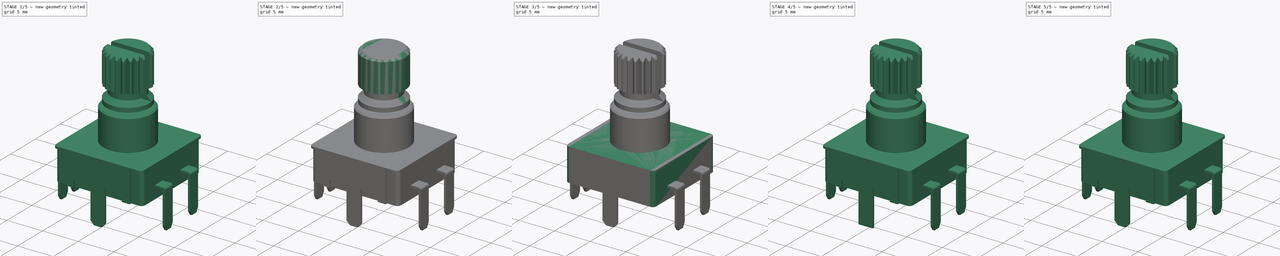
[diagram: build sequence overview — one tinted view per stage of 5, left to right]
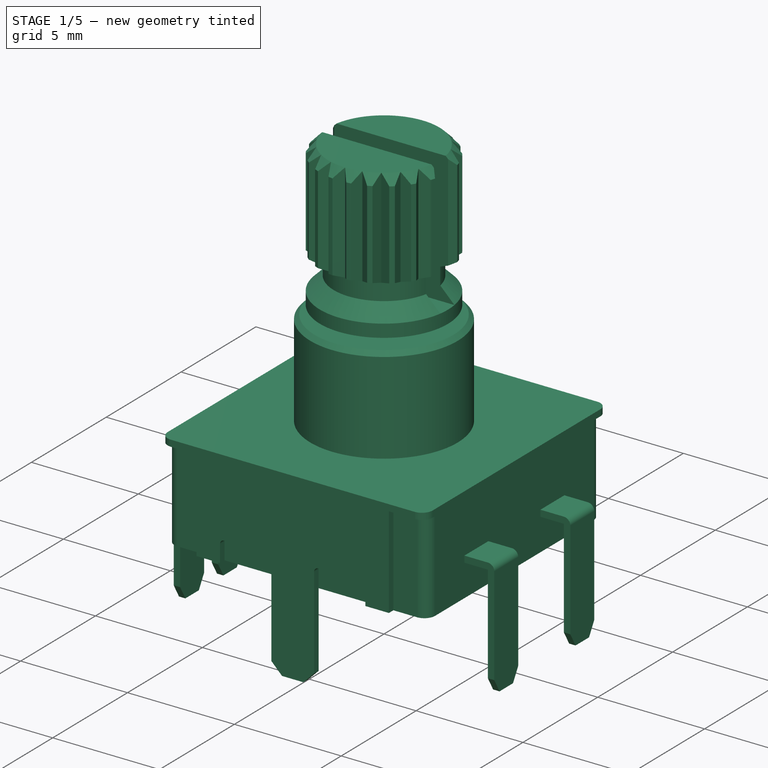
[diagram: stage 1 of 5 — iso view after this stage's code; geometry added in this stage tinted green]
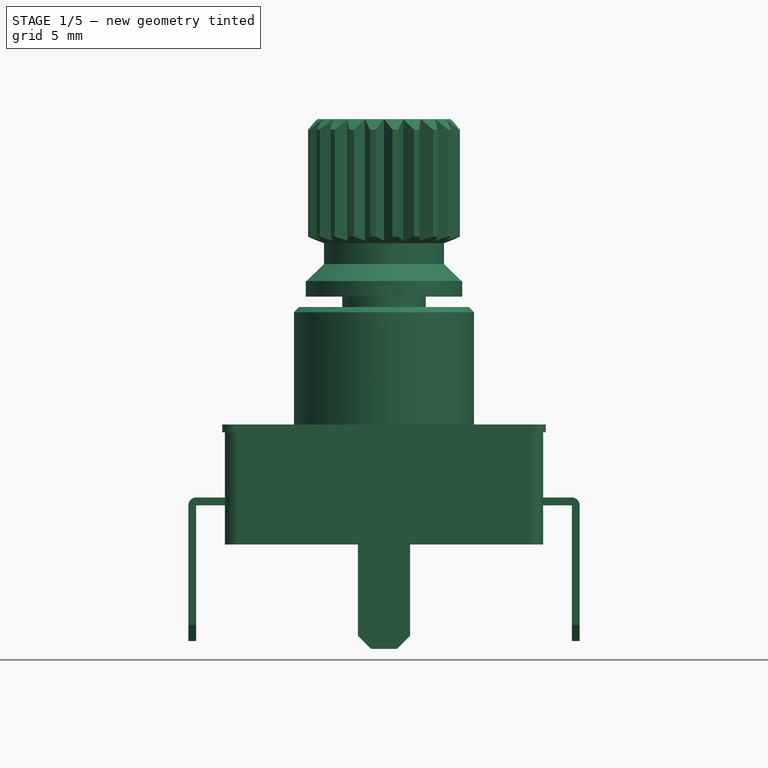
[diagram: stage 1 of 5 — front view after this stage's code; geometry added in this stage tinted green]
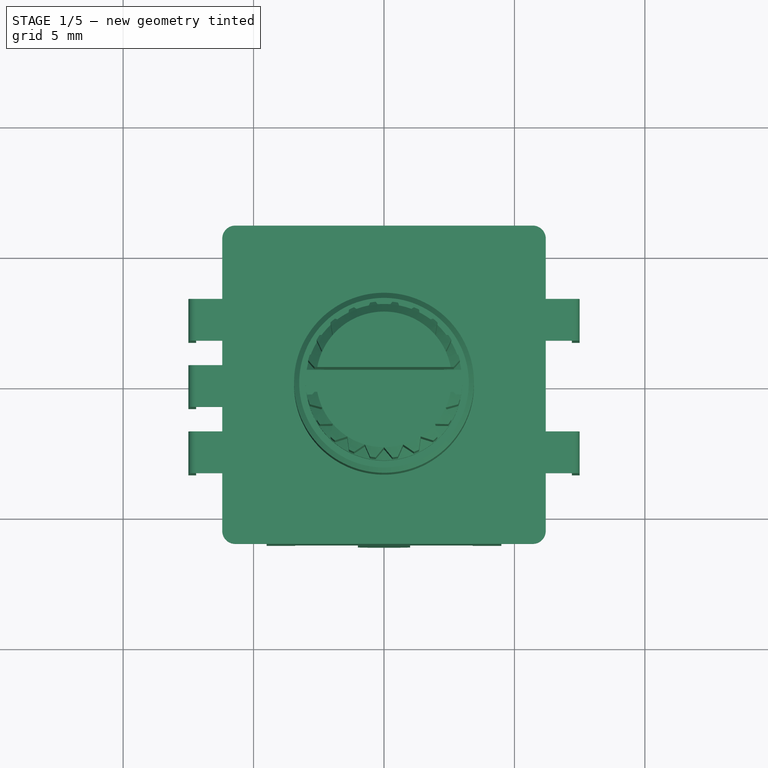
[diagram: stage 1 of 5 — top view after this stage's code; geometry added in this stage tinted green]
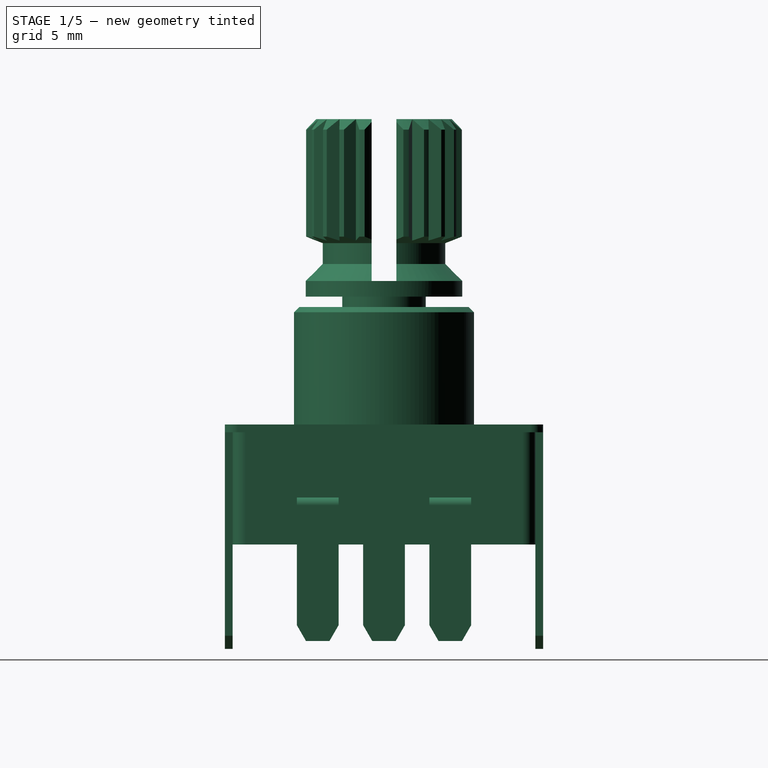
[diagram: stage 1 of 5 — right view after this stage's code; geometry added in this stage tinted green]
FCSTD DOCUMENT  (FreeCAD 0.14R3702 (Git))
Label: rotatory-enconder
License: CC-BY 3.0
LicenseURL: http://creativecommons.org/licenses/by/3.0/
objects: Sketcher::SketchObject×10, Part::Feature×6, PartDesign::Pocket×5, PartDesign::Pad×4, App::DocumentObjectGroup×3, Part::MultiFuse×2, Part::Mirroring×2, Part::Chamfer×1, Part::Fillet×1, PartDesign::Revolution×1, PartDesign::PolarPattern×1, Part::Compound×1
note: 44 computed .brp shape members not serialized (recipe doc carries the construction recipe); baked Part::Feature solids carry a one-line shape summary decoded from their .brp

FEATURE [Part::Feature] Pocket004001  label="pin-1"
  Placement = pos=(0,0,0) rot=(1,0,0;1.5708rad)
  shape: bbox 1.4 x 1.6 x 5.5 mm, 11 faces (baked)
FEATURE [Part::Feature] Pocket004002  label="pin-002"
  Placement = pos=(0,2.54,0) rot=(1,0,0;1.5708rad)
  shape: bbox 1.4 x 1.6 x 5.5 mm, 11 faces (baked)
FEATURE [Part::Feature] Pocket004003  label="pin-003"
  Placement = pos=(0,-2.54,0) rot=(1,0,0;1.5708rad)
  shape: bbox 1.4 x 1.6 x 5.5 mm, 11 faces (baked)
FEATURE [Part::Mirroring] Part__Mirroring  label="pin-003 (Mirror #1)"
  Base = (0,0,0)
  Normal = (1,0,0)
  Source = -> Pocket004003
FEATURE [Part::Mirroring] Part__Mirroring001  label="pin-002 (Mirror #2)"
  Base = (0,0,0)
  Normal = (1,0,0)
  Source = -> Pocket004002
FEATURE [Part::MultiFuse] Fusion002  label="pins-union"
  Shapes = -> [Pocket004001,Part__Mirroring001,Pocket004003,Pocket004002,Part__Mirroring]
FEATURE [App::DocumentObjectGroup] Group002  label="pin-src"
  Group = -> [Pad004,Pocket004,Fusion002]
FEATURE [Part::Feature] Fusion003  label="pins"
  shape: bbox 15 x 6.68 x 5.5 mm, 55 faces, 5 solids (baked)
FEATURE [Part::Compound] Compound  label="rotatory-encoder"
  Links = -> [Pad003,Fusion001,Fusion003]
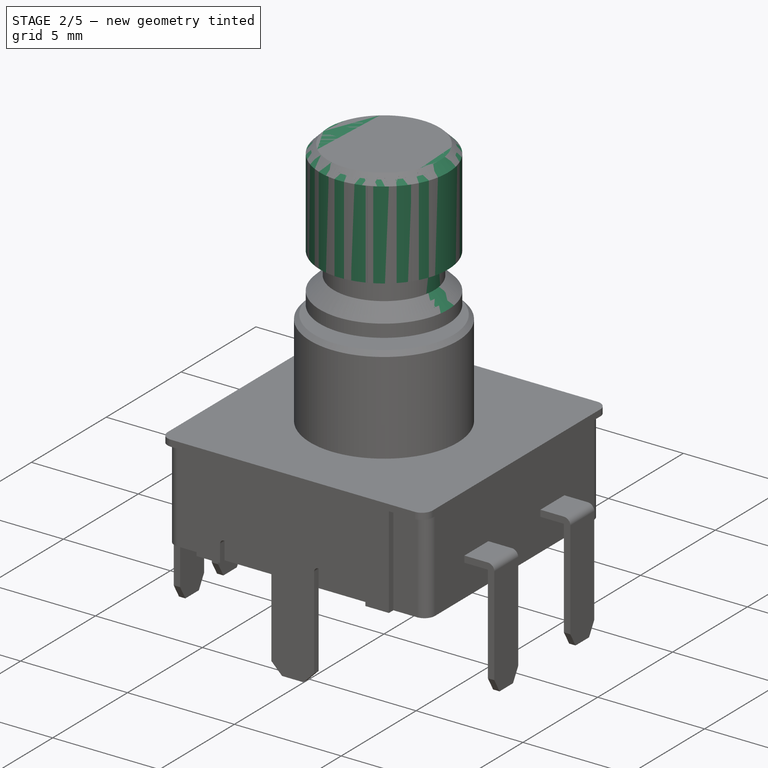
[diagram: stage 2 of 5 — iso view after this stage's code; geometry added in this stage tinted green]
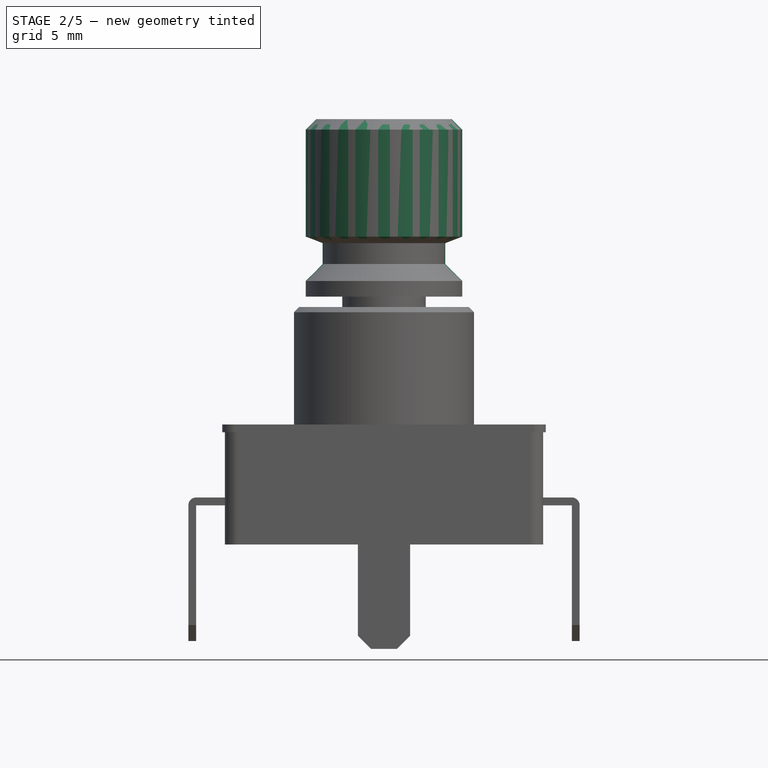
[diagram: stage 2 of 5 — front view after this stage's code; geometry added in this stage tinted green]
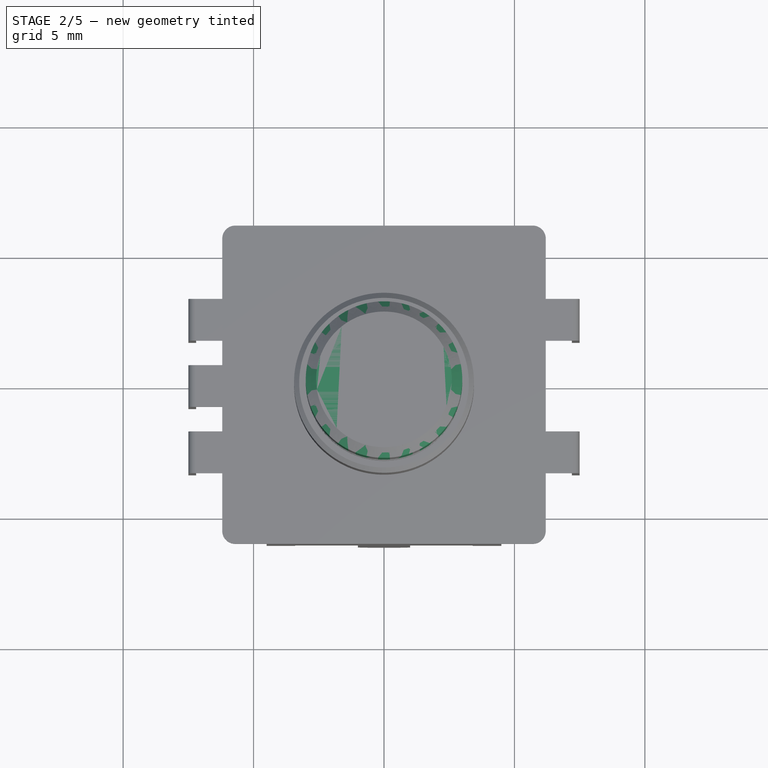
[diagram: stage 2 of 5 — top view after this stage's code; geometry added in this stage tinted green]
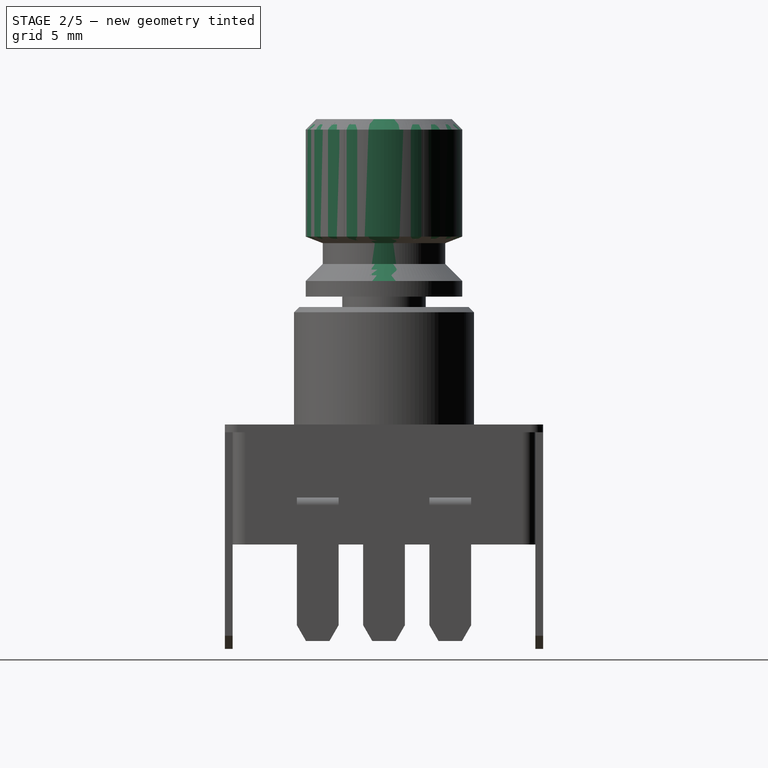
[diagram: stage 2 of 5 — right view after this stage's code; geometry added in this stage tinted green]
FEATURE [Sketcher::SketchObject] Sketch005  label="rotatory-button-sketch"
  Placement = pos=(0,0,0) rot=(1,0,0;1.5708rad)
  sketch-geometry (14):
    g0: LineSegment StartX=0 StartY=4.3 StartZ=0 EndX=3.45 EndY=4.3 EndZ=0
    g1: LineSegment StartX=3.45 StartY=4.3 StartZ=0 EndX=3.45 EndY=8.9 EndZ=0
    g2: LineSegment StartX=0 StartY=16.3 StartZ=0 EndX=0 EndY=4.3 EndZ=0
    g3: LineSegment StartX=3.25 StartY=9.1 StartZ=0 EndX=1.6 EndY=9.1 EndZ=0
    g4: LineSegment StartX=3.25 StartY=9.1 StartZ=0 EndX=3.45 EndY=8.9 EndZ=0
    g5: LineSegment StartX=1.6 StartY=9.1 StartZ=0 EndX=1.6 EndY=9.5 EndZ=0
    g6: LineSegment StartX=1.6 StartY=9.5 StartZ=0 EndX=3 EndY=9.5 EndZ=0
    g7: LineSegment StartX=3 StartY=9.5 StartZ=0 EndX=3 EndY=10.1 EndZ=0
    g8: LineSegment StartX=2.35 StartY=11.55 StartZ=0 EndX=2.35 EndY=10.75 EndZ=0
    g9: LineSegment StartX=2.35 StartY=10.75 StartZ=0 EndX=3 EndY=10.1 EndZ=0
    g10: LineSegment StartX=0 StartY=16.3 StartZ=0 EndX=2.6 EndY=16.3 EndZ=0
    g11: LineSegment StartX=2.6 StartY=16.3 StartZ=0 EndX=3 EndY=15.9 EndZ=0
    g12: LineSegment StartX=3 StartY=15.9 StartZ=0 EndX=3 EndY=11.8 EndZ=0
    g13: LineSegment StartX=2.35 StartY=11.55 StartZ=0 EndX=3 EndY=11.8 EndZ=0
  constraints (42):
    c: Coincident(g0,g1)
    c: Coincident(g2,g0)
    c: Horizontal(g0)
    c: Vertical(g1)
    c: Vertical(g2)
    c: PointOnObject(g0,g-2)
    c: DistanceY(g-1,g0) = 4.3
    c: DistanceX(g0) = 3.45
    c: DistanceY(g3,g0) = -4.8
    c: Horizontal(g3)
    c: DistanceX(g0,g3) = 1.6
    c: Coincident(g4,g3)
    c: Coincident(g4,g1)
    c: Angle(g3,g4) = 2.35619
    c: DistanceX(g1,g3) = -0.2
    c: Vertical(g5)
    c: Coincident(g5,g3)
    c: DistanceY(g5) = 0.4
    c: DistanceY(g2) = -12
    c: Coincident(g6,g7)
    c: Horizontal(g6)
    c: Vertical(g7)
    c: Coincident(g6,g5)
    c: DistanceY(g7) = 0.6
    c: Vertical(g8)
    c: DistanceX(g8,g0) = -2.35
    c: DistanceX(g6,g0) = -3
    c: Coincident(g9,g7)
    c: Coincident(g9,g8)
    c: Angle(g9,g8) = 2.35619
    c: DistanceY(g8) = -0.8
    c: Coincident(g10,g11)
    c: Coincident(g11,g12)
    c: Horizontal(g10)
    c: Vertical(g12)
    c: Angle(g10,g11) = 2.35619
    c: Coincident(g10,g2)
    c: DistanceX(g11,g2) = -3
    c: DistanceX(g11,g10) = -0.4
    c: DistanceY(g12) = -4.1
    c: Coincident(g13,g8)
    c: Coincident(g13,g12)
FEATURE [PartDesign::Revolution] Revolution  label="rotatory-button"
  Angle = 360
  Axis = (0,0,1)
  Base = (0,0,0)
  Placement = pos=(0,0,0) rot=(1,0,0;1.5708rad)
  ReferenceAxis = -> Sketch005 [V_Axis]
  Reversed = true
  Sketch = -> Sketch005
FEATURE [App::DocumentObjectGroup] Group001  label="metal-cover-button"
  Group = -> [Pad001,Pocket,Pocket001,Fillet,Revolution,Pocket002,PolarPattern,Pocket003,Fusion]
FEATURE [Part::Feature] Pad003  label="main-body-final"
  shape: bbox 12.2 x 11.6 x 4.3 mm, 10 faces (baked)
FEATURE [Part::Feature] Fusion001  label="metal-cover-button-final"
  shape: bbox 12.4 x 12.2 x 20.3 mm, 143 faces (baked)
FEATURE [Sketcher::SketchObject] Sketch008  label="pin-body-sketch"
  Placement = pos=(0,0,0) rot=(1,0,0;1.5708rad)
  sketch-geometry (8):
    g0: LineSegment StartX=-6.1 StartY=1.8 StartZ=0 EndX=-7.2 EndY=1.8 EndZ=0
    g1: LineSegment [constr] StartX=-7.2 StartY=1.8 StartZ=0 EndX=-7.2 EndY=1.5 EndZ=0
    g2: LineSegment StartX=-7.2 StartY=1.5 StartZ=0 EndX=-6.1 EndY=1.5 EndZ=0
    g3: LineSegment StartX=-6.1 StartY=1.5 StartZ=0 EndX=-6.1 EndY=1.8 EndZ=0
    g4: LineSegment StartX=-7.5 StartY=1.5 StartZ=0 EndX=-7.5 EndY=-3.7 EndZ=0
    g5: ArcOfCircle CenterX=-7.2 CenterY=1.5 CenterZ=0 NormalX=0 NormalY=0 NormalZ=1 Radius=0.3 StartAngle=1.5708 EndAngle=3.14159
    g6: LineSegment StartX=-7.2 StartY=1.5 StartZ=0 EndX=-7.2 EndY=-3.7 EndZ=0
    g7: LineSegment StartX=-7.2 StartY=-3.7 StartZ=0 EndX=-7.5 EndY=-3.7 EndZ=0
  constraints (23):
    c: Coincident(g0,g1)
    c: Coincident(g1,g2)
    c: Coincident(g2,g3)
    c: Coincident(g3,g0)
    c: Horizontal(g0)
    c: Horizontal(g2)
    c: Vertical(g1)
    c: Vertical(g3)
    c: DistanceY(g3) = 0.3
    c: DistanceX(g-1,g2) = -6.1
    c: DistanceY(g-1,g0) = 1.8
    c: Coincident(g5,g0)
    c: Coincident(g5,g1)
    c: Coincident(g4,g5)
    c: Vertical(g4)
    c: DistanceX(g-1,g4) = -7.5
    c: PointOnObject(g4,g2)
    c: DistanceY(g0,g4) = -5.5
    c: Coincident(g6,g7)
    c: Horizontal(g7)
    c: Vertical(g6)
    c: Coincident(g6,g1)
    c: Coincident(g7,g4)
FEATURE [PartDesign::Pad] Pad004  label="pin-body"
  Length = 1.6
  Length2 = 100
  Midplane = true
  Placement = pos=(0,0,0) rot=(1,0,0;1.5708rad)
  Sketch = -> Sketch008
  Type = 0
FEATURE [Sketcher::SketchObject] Sketch009  label="pin-cutout-1-sketch"
  ExternalGeometry = -> [Pad004]
  Placement = pos=(-7.5,0,0) rot=(0.707107,0,-0.707107;3.14159rad)
  Support = -> Pad004 [Face5]
  sketch-geometry (8):
    g0: LineSegment StartX=3.09378 StartY=0.8 StartZ=0 EndX=3.7 EndY=0.45 EndZ=0
    g1: LineSegment StartX=3.7 StartY=0.45 StartZ=0 EndX=3.7 EndY=-0.45 EndZ=0
    g2: LineSegment StartX=3.7 StartY=-0.45 StartZ=0 EndX=3.09378 EndY=-0.8 EndZ=0
    g3: LineSegment StartX=3.09378 StartY=1.3 StartZ=0 EndX=4.2 EndY=1.3 EndZ=0
    g4: LineSegment StartX=4.2 StartY=1.3 StartZ=0 EndX=4.2 EndY=-1.3 EndZ=0
    g5: LineSegment StartX=4.2 StartY=-1.3 StartZ=0 EndX=3.09378 EndY=-1.3 EndZ=0
    g6: LineSegment StartX=3.09378 StartY=1.3 StartZ=0 EndX=3.09378 EndY=0.8 EndZ=0
    g7: LineSegment StartX=3.09378 StartY=-0.8 StartZ=0 EndX=3.09378 EndY=-1.3 EndZ=0
  constraints (23):
    c: Coincident(g0,g1)
    c: Coincident(g1,g2)
    c: Vertical(g1)
    c: Symmetric(g0,g1,g-1)
    c: DistanceY(g1) = -0.9
    c: PointOnObject(g0,g-3)
    c: Angle(g0,g-3) = 2.0944
    c: PointOnObject(g0,g-4)
    c: Symmetric(g0,g2,g-1)
    c: Coincident(g3,g4)
    c: Coincident(g4,g5)
    c: Horizontal(g3)
    c: Horizontal(g5)
    c: Vertical(g4)
    c: Vertical(g6)
    c: Coincident(g6,g3)
    c: Vertical(g7)
    c: Coincident(g7,g5)
    c: Coincident(g7,g2)
    c: Coincident(g6,g0)
    c: Symmetric(g4,g3,g-1)
    c: DistanceX(g0,g3) = 0.5
    c: DistanceY(g3,g0) = -0.5
FEATURE [PartDesign::Pocket] Pocket004  label="pin-cutout-1"
  Length = 5
  Placement = pos=(0,0,0) rot=(1,0,0;1.5708rad)
  Sketch = -> Sketch009
  Type = 1
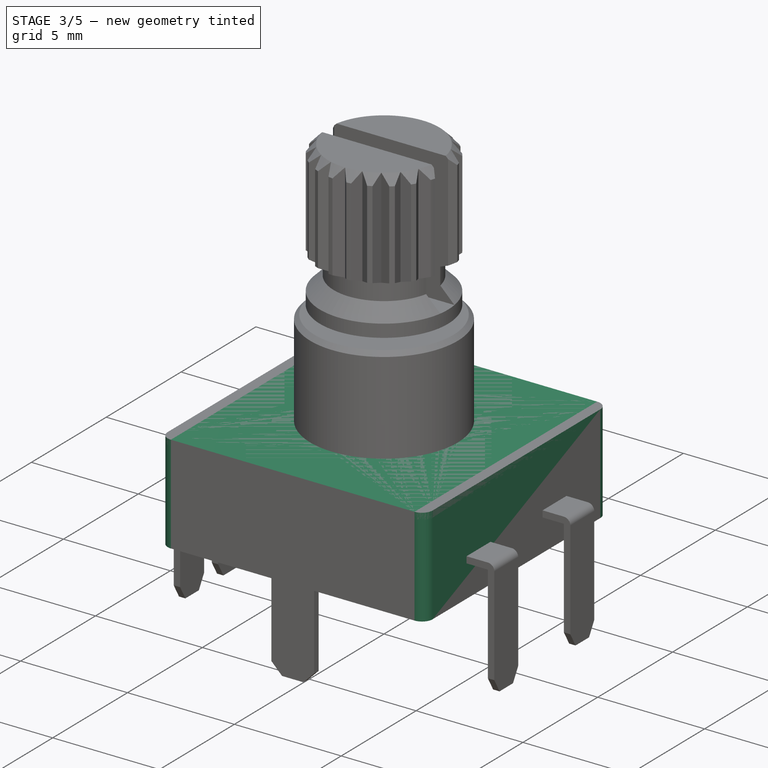
[diagram: stage 3 of 5 — iso view after this stage's code; geometry added in this stage tinted green]
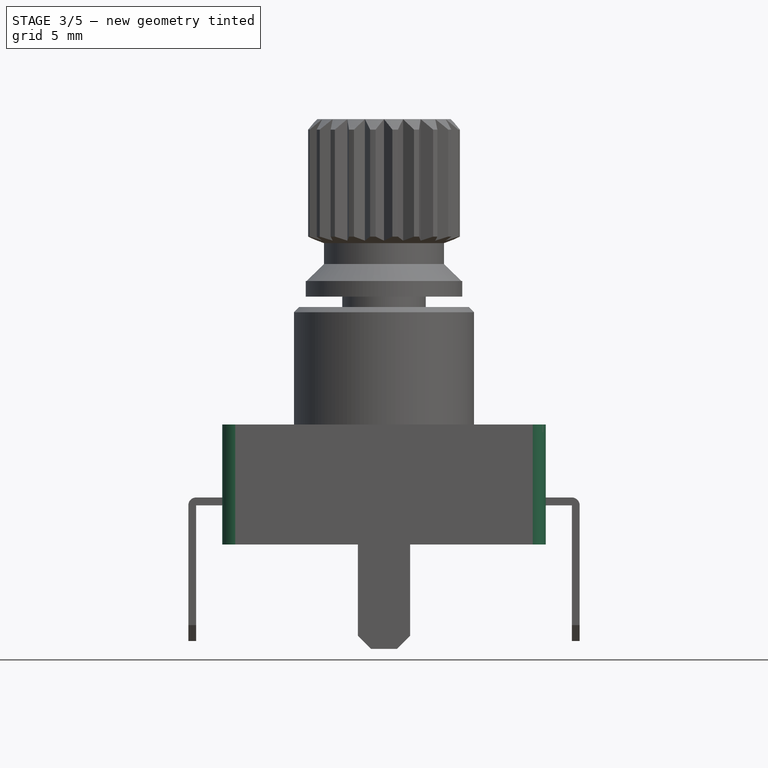
[diagram: stage 3 of 5 — front view after this stage's code; geometry added in this stage tinted green]
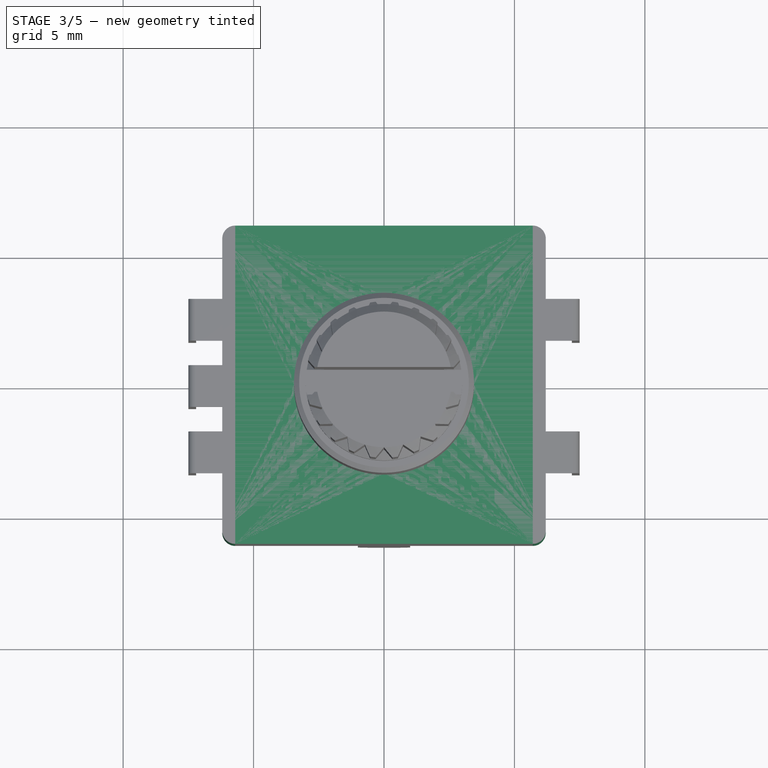
[diagram: stage 3 of 5 — top view after this stage's code; geometry added in this stage tinted green]
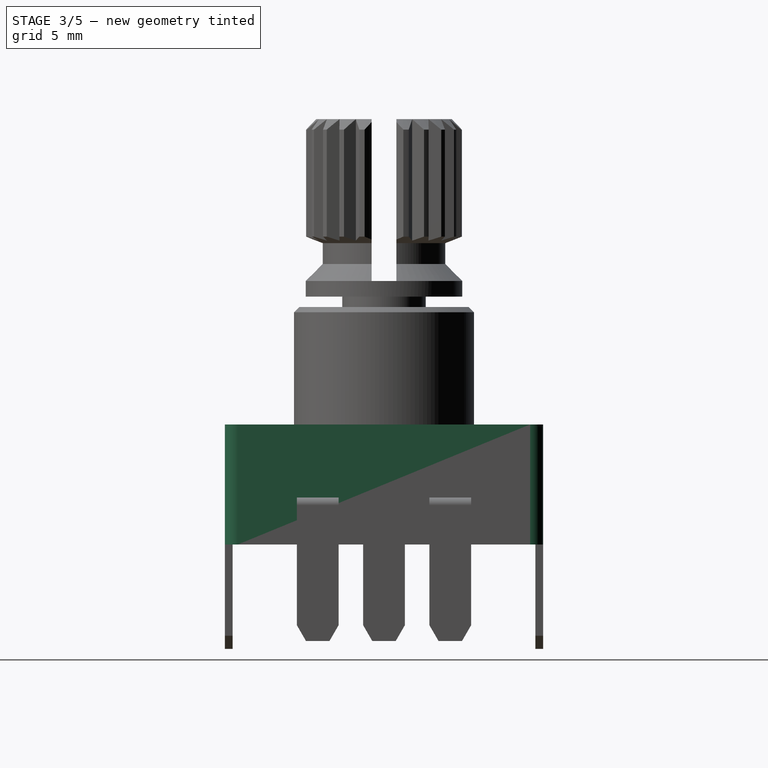
[diagram: stage 3 of 5 — right view after this stage's code; geometry added in this stage tinted green]
FEATURE [Sketcher::SketchObject] Sketch001  label="metal-cover-mail-sketch"
  sketch-geometry (8):
    g0: LineSegment StartX=-5.7 StartY=6.1 StartZ=0 EndX=5.7 EndY=6.1 EndZ=0
    g1: LineSegment StartX=6.2 StartY=5.6 StartZ=0 EndX=6.2 EndY=-5.6 EndZ=0
    g2: LineSegment StartX=5.7 StartY=-6.1 StartZ=0 EndX=-5.7 EndY=-6.1 EndZ=0
    g3: LineSegment StartX=-6.2 StartY=-5.6 StartZ=0 EndX=-6.2 EndY=5.6 EndZ=0
    g4: ArcOfCircle CenterX=-5.7 CenterY=5.6 CenterZ=0 NormalX=0 NormalY=0 NormalZ=1 Radius=0.5 StartAngle=1.5708 EndAngle=3.14159
    g5: ArcOfCircle CenterX=5.7 CenterY=5.6 CenterZ=0 NormalX=0 NormalY=0 NormalZ=1 Radius=0.5 StartAngle=0 EndAngle=1.5708
    g6: ArcOfCircle CenterX=5.7 CenterY=-5.6 CenterZ=0 NormalX=0 NormalY=0 NormalZ=1 Radius=0.5 StartAngle=4.71239 EndAngle=6.28319
    g7: ArcOfCircle CenterX=-5.7 CenterY=-5.6 CenterZ=0 NormalX=0 NormalY=0 NormalZ=1 Radius=0.5 StartAngle=3.14159 EndAngle=4.71239
  constraints (19):
    c: Horizontal(g0)
    c: Horizontal(g2)
    c: Vertical(g1)
    c: Vertical(g3)
    c: Tangent(g0,g4)
    c: Tangent(g3,g4)
    c: Tangent(g0,g5)
    c: Tangent(g1,g5)
    c: Tangent(g1,g6)
    c: Tangent(g2,g6)
    c: Tangent(g2,g7)
    c: Tangent(g3,g7)
    c: Radius(g4) = 0.5
    c: Equal(g4,g7)
    c: Equal(g7,g6)
    c: Equal(g6,g5)
    c: Symmetric(g4,g6,g-1)
    c: DistanceX(g3,g1) = 12.4
    c: DistanceY(g0,g2) = -12.2
FEATURE [PartDesign::Pad] Pad001  label="metal-cover-main"
  Length = 4.6
  Length2 = 100
  Sketch = -> Sketch001
  Type = 0
FEATURE [Sketcher::SketchObject] Sketch006  label="tooth-sketch"
  Placement = pos=(0,0,16.3) rot=(0,0,1;3.14159rad)
  Support = -> Revolution [Face13]
  sketch-geometry (4):
    g0: Circle [constr] CenterX=0 CenterY=0 CenterZ=0 NormalX=0 NormalY=0 NormalZ=1 Radius=3
    g1: LineSegment StartX=-0.41955 StartY=3.1 StartZ=0 EndX=0.41955 EndY=3.1 EndZ=0
    g2: LineSegment StartX=-0.41955 StartY=3.1 StartZ=0 EndX=0 EndY=2.6 EndZ=0
    g3: LineSegment StartX=0 StartY=2.6 StartZ=0 EndX=0.41955 EndY=3.1 EndZ=0
  constraints (11):
    c: Coincident(g0,g-1)
    c: Radius(g0) = 3
    c: Horizontal(g1)
    c: Symmetric(g1,g1,g-2)
    c: PointOnObject(g2,g-2)
    c: Coincident(g2,g1)
    c: DistanceY(g-1,g2) = 2.6
    c: Angle(g2,g-2) = 2.44346
    c: Coincident(g3,g2)
    c: Coincident(g3,g1)
    c: DistanceY(g2,g1) = 0.5
FEATURE [PartDesign::Pocket] Pocket002  label="tooth"
  Length = 4.75
  Placement = pos=(0,0,0) rot=(1,0,0;1.5708rad)
  Sketch = -> Sketch006
  Type = 0
FEATURE [PartDesign::PolarPattern] PolarPattern  label="teeth"
  Angle = 360
  Axis = -> Sketch006 [N_Axis]
  Occurrences = 22
  Originals = -> [Pocket002]
  Placement = pos=(0,0,0) rot=(1,0,0;1.5708rad)
FEATURE [Sketcher::SketchObject] Sketch007  label="slot-sketch"
  Placement = pos=(0,0,16.3) rot=(0,0,1;3.14159rad)
  Support = -> PolarPattern [Face101]
  sketch-geometry (4):
    g0: LineSegment StartX=-4 StartY=0.475 StartZ=0 EndX=4 EndY=0.475 EndZ=0
    g1: LineSegment StartX=4 StartY=0.475 StartZ=0 EndX=4 EndY=-0.475 EndZ=0
    g2: LineSegment StartX=4 StartY=-0.475 StartZ=0 EndX=-4 EndY=-0.475 EndZ=0
    g3: LineSegment StartX=-4 StartY=-0.475 StartZ=0 EndX=-4 EndY=0.475 EndZ=0
  constraints (11):
    c: Coincident(g0,g1)
    c: Coincident(g1,g2)
    c: Coincident(g2,g3)
    c: Coincident(g3,g0)
    c: Horizontal(g0)
    c: Horizontal(g2)
    c: Vertical(g1)
    c: Vertical(g3)
    c: DistanceY(g1) = -0.95
    c: DistanceX(g0) = 8
    c: Symmetric(g0,g1,g-1)
FEATURE [PartDesign::Pocket] Pocket003  label="slot"
  Length = 6.2
  Placement = pos=(0,0,0) rot=(1,0,0;1.5708rad)
  Sketch = -> Sketch007
  Type = 0
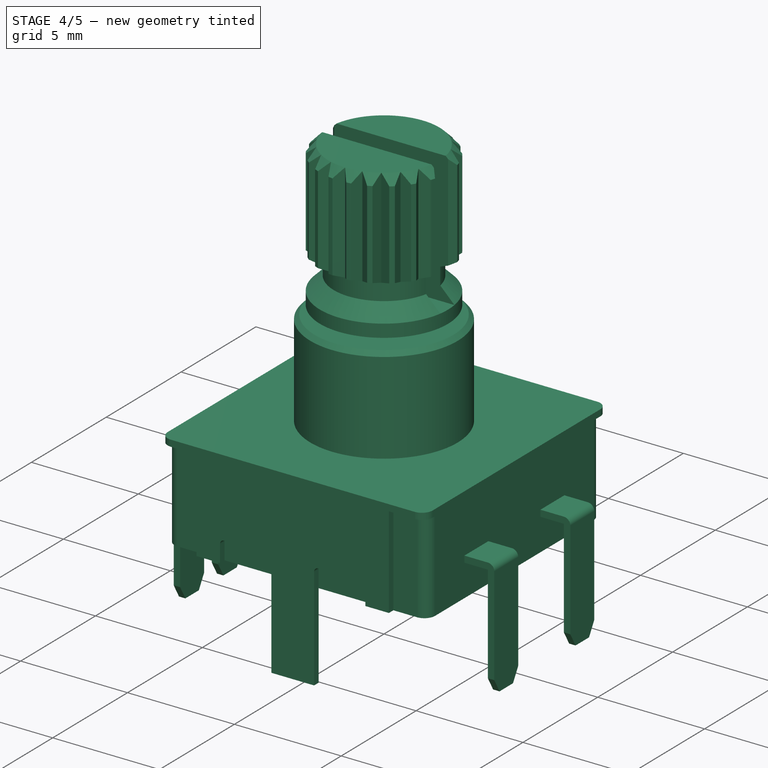
[diagram: stage 4 of 5 — iso view after this stage's code; geometry added in this stage tinted green]
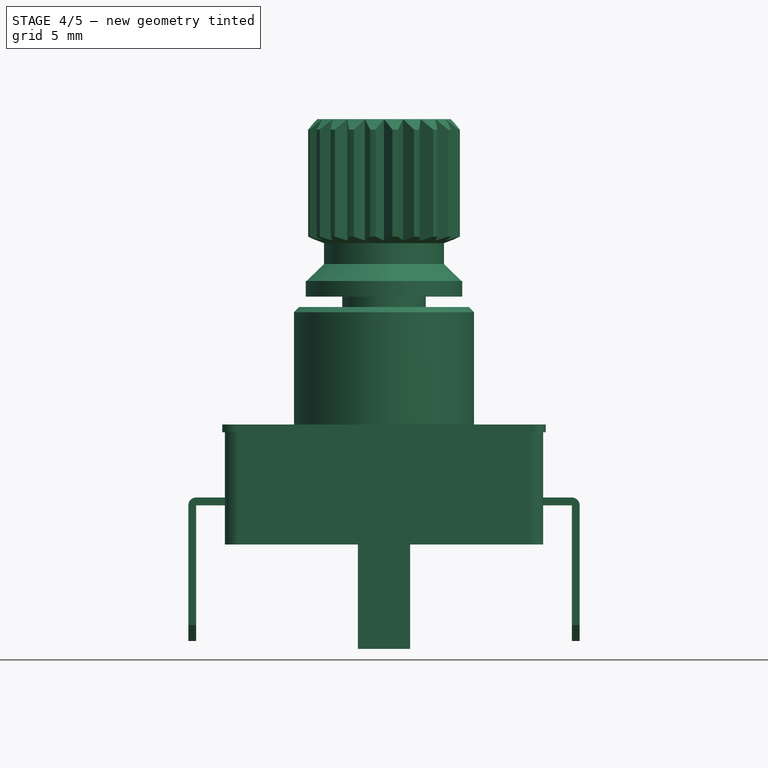
[diagram: stage 4 of 5 — front view after this stage's code; geometry added in this stage tinted green]
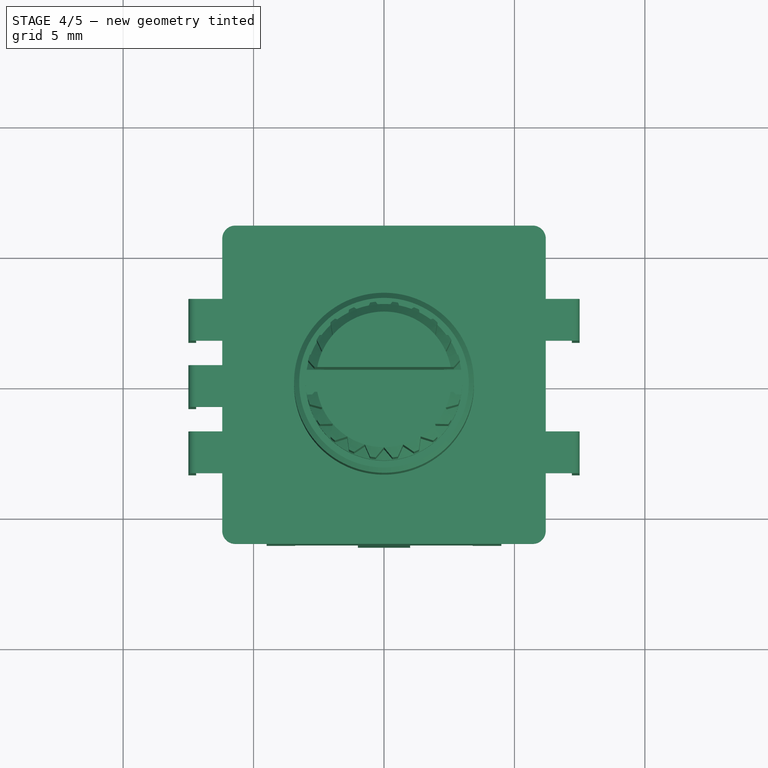
[diagram: stage 4 of 5 — top view after this stage's code; geometry added in this stage tinted green]
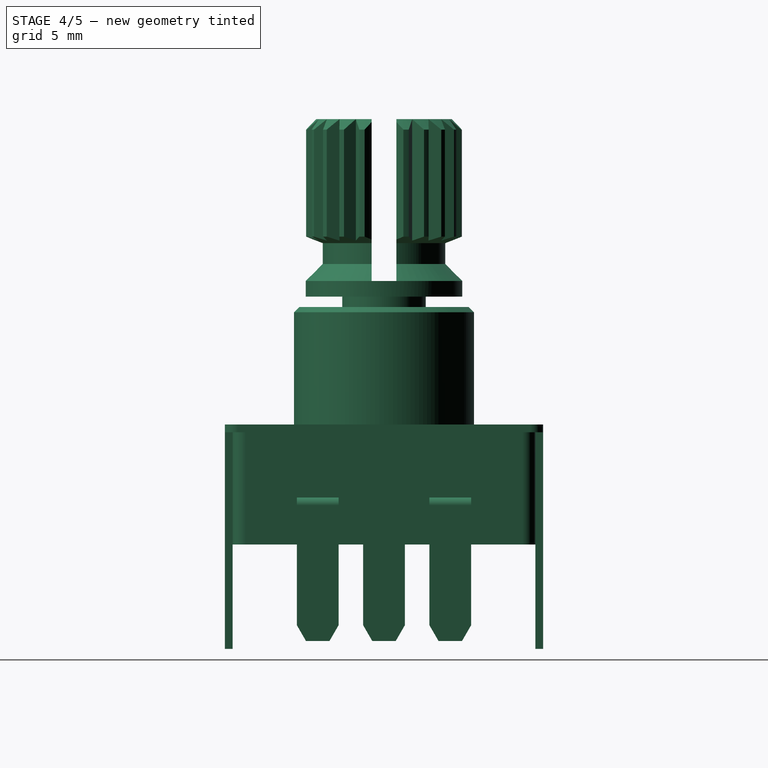
[diagram: stage 4 of 5 — right view after this stage's code; geometry added in this stage tinted green]
FEATURE [Sketcher::SketchObject] Sketch002  label="metal-cover-cutout-1-sketch"
  ExternalGeometry = -> [Pad001]
  Placement = pos=(0,0,0) rot=(1,0,0;3.14159rad)
  Support = -> Pad001 [Face9]
  sketch-geometry (12):
    g0: LineSegment StartX=-7.2 StartY=-7.1 StartZ=0 EndX=-7.2 EndY=7.1 EndZ=0
    g1: LineSegment StartX=-7.2 StartY=7.1 StartZ=0 EndX=-4.5 EndY=7.1 EndZ=0
    g2: LineSegment StartX=-4.5 StartY=7.1 StartZ=0 EndX=-4.5 EndY=5.8 EndZ=0
    g3: LineSegment StartX=-4.5 StartY=5.8 StartZ=0 EndX=4.5 EndY=5.8 EndZ=0
    g4: LineSegment StartX=4.5 StartY=7.1 StartZ=0 EndX=7.2 EndY=7.1 EndZ=0
    g5: LineSegment StartX=7.2 StartY=7.1 StartZ=0 EndX=7.2 EndY=-7.1 EndZ=0
    g6: LineSegment StartX=4.5 StartY=5.8 StartZ=0 EndX=4.5 EndY=7.1 EndZ=0
    g7: LineSegment StartX=-7.2 StartY=-7.1 StartZ=0 EndX=-4.5 EndY=-7.1 EndZ=0
    g8: LineSegment StartX=-4.5 StartY=-7.1 StartZ=0 EndX=-4.5 EndY=-5.8 EndZ=0
    g9: LineSegment StartX=-4.5 StartY=-5.8 StartZ=0 EndX=4.5 EndY=-5.8 EndZ=0
    g10: LineSegment StartX=4.5 StartY=-5.8 StartZ=0 EndX=4.5 EndY=-7.1 EndZ=0
    g11: LineSegment StartX=4.5 StartY=-7.1 StartZ=0 EndX=7.2 EndY=-7.1 EndZ=0
  constraints (34):
    c: Coincident(g0,g1)
    c: Coincident(g1,g2)
    c: Coincident(g2,g3)
    c: Vertical(g2)
    c: Horizontal(g1)
    c: Horizontal(g3)
    c: DistanceY(g-3,g0) = 1
    c: DistanceX(g-4,g0) = -1
    c: DistanceY(g-3,g2) = -0.3
    c: Symmetric(g2,g3,g-2)
    c: DistanceX(g3) = 9
    c: Symmetric(g0,g0,g-1)
    c: Coincident(g4,g5)
    c: Coincident(g6,g4)
    c: Horizontal(g4)
    c: Vertical(g5)
    c: Vertical(g6)
    c: Coincident(g6,g3)
    c: Symmetric(g4,g1,g-2)
    c: Symmetric(g4,g0,g-2)
    c: Symmetric(g5,g0,g-2)
    c: Coincident(g7,g8)
    c: Coincident(g8,g9)
    c: Horizontal(g7)
    c: Horizontal(g9)
    c: Coincident(g7,g0)
    c: Vertical(g8)
    c: Symmetric(g8,g2,g-1)
    c: Symmetric(g9,g8,g-2)
    c: Coincident(g10,g11)
    c: Horizontal(g11)
    c: Vertical(g10)
    c: Coincident(g10,g9)
    c: Coincident(g11,g5)
FEATURE [PartDesign::Pocket] Pocket  label="metal-cover-cutout-1"
  Length = 4.3
  Sketch = -> Sketch002
  Type = 0
FEATURE [Sketcher::SketchObject] Sketch003  label="metal-cover-cutout-2-sketch"
  Placement = pos=(0,-6.1,0) rot=(1,0,0;1.5708rad)
  Support = -> Pocket [Face7]
  sketch-geometry (11):
    g0: LineSegment StartX=-3.4 StartY=1 StartZ=0 EndX=-1 EndY=1 EndZ=0
    g1: LineSegment StartX=-1 StartY=1 StartZ=0 EndX=-1 EndY=0 EndZ=0
    g2: LineSegment [constr] StartX=-1 StartY=0 StartZ=0 EndX=-3.4 EndY=0 EndZ=0
    g3: LineSegment StartX=-3.4 StartY=0 StartZ=0 EndX=-3.4 EndY=1 EndZ=0
    g4: LineSegment StartX=-1 StartY=0 StartZ=0 EndX=-1 EndY=-0.5 EndZ=0
    g5: LineSegment StartX=-1 StartY=-0.5 StartZ=0 EndX=-3.4 EndY=-0.5 EndZ=0
    g6: LineSegment StartX=-3.4 StartY=-0.5 StartZ=0 EndX=-3.4 EndY=0 EndZ=0
    g7: LineSegment StartX=1 StartY=1 StartZ=0 EndX=3.4 EndY=1 EndZ=0
    g8: LineSegment StartX=3.4 StartY=1 StartZ=0 EndX=3.4 EndY=-0.5 EndZ=0
    g9: LineSegment StartX=3.4 StartY=-0.5 StartZ=0 EndX=1 EndY=-0.5 EndZ=0
    g10: LineSegment StartX=1 StartY=-0.5 StartZ=0 EndX=1 EndY=1 EndZ=0
  constraints (30):
    c: Coincident(g0,g1)
    c: Coincident(g1,g2)
    c: Coincident(g2,g3)
    c: Coincident(g3,g0)
    c: Horizontal(g0)
    c: Horizontal(g2)
    c: Vertical(g1)
    c: Vertical(g3)
    c: DistanceX(g-1,g0) = -1
    c: PointOnObject(g1,g-1)
    c: DistanceY(g3) = 1
    c: DistanceX(g0) = 2.4
    c: Coincident(g4,g5)
    c: Coincident(g5,g6)
    c: Horizontal(g5)
    c: Vertical(g4)
    c: Vertical(g6)
    c: Coincident(g6,g2)
    c: Coincident(g4,g1)
    c: DistanceY(g6) = 0.5
    c: Coincident(g7,g8)
    c: Coincident(g8,g9)
    c: Coincident(g9,g10)
    c: Coincident(g10,g7)
    c: Horizontal(g7)
    c: Horizontal(g9)
    c: Vertical(g8)
    c: Vertical(g10)
    c: Symmetric(g0,g7,g-2)
    c: Symmetric(g5,g8,g-2)
FEATURE [PartDesign::Pocket] Pocket001  label="metal-cover-cutout-2"
  Length = 5
  Sketch = -> Sketch003
  Type = 1
FEATURE [Sketcher::SketchObject] Sketch004  label="metal-cover-pins-sketch"
  ExternalGeometry = -> [Pocket001]
  Placement = pos=(0,0,0) rot=(1,0,0;3.14159rad)
  Support = -> Pocket001 [Face30]
  sketch-geometry (8):
    g0: LineSegment StartX=-1 StartY=6.1 StartZ=0 EndX=1 EndY=6.1 EndZ=0
    g1: LineSegment StartX=1 StartY=6.1 StartZ=0 EndX=1 EndY=5.8 EndZ=0
    g2: LineSegment StartX=1 StartY=5.8 StartZ=0 EndX=-1 EndY=5.8 EndZ=0
    g3: LineSegment StartX=-1 StartY=5.8 StartZ=0 EndX=-1 EndY=6.1 EndZ=0
    g4: LineSegment StartX=-1 StartY=-5.8 StartZ=0 EndX=1 EndY=-5.8 EndZ=0
    g5: LineSegment StartX=1 StartY=-5.8 StartZ=0 EndX=1 EndY=-6.1 EndZ=0
    g6: LineSegment StartX=1 StartY=-6.1 StartZ=0 EndX=-1 EndY=-6.1 EndZ=0
    g7: LineSegment StartX=-1 StartY=-6.1 StartZ=0 EndX=-1 EndY=-5.8 EndZ=0
  constraints (20):
    c: Coincident(g0,g1)
    c: Coincident(g1,g2)
    c: Coincident(g2,g3)
    c: Coincident(g3,g0)
    c: Horizontal(g0)
    c: Horizontal(g2)
    c: Vertical(g1)
    c: Vertical(g3)
    c: Coincident(g0,g-3)
    c: Coincident(g1,g-4)
    c: Coincident(g4,g5)
    c: Coincident(g5,g6)
    c: Coincident(g6,g7)
    c: Coincident(g7,g4)
    c: Horizontal(g4)
    c: Horizontal(g6)
    c: Vertical(g5)
    c: Vertical(g7)
    c: Symmetric(g4,g2,g-1)
    c: Symmetric(g5,g0,g-1)
FEATURE [PartDesign::Pad] Pad002  label="metal-cover-pins"
  Length = 4
  Length2 = 100
  Sketch = -> Sketch004
  Type = 0
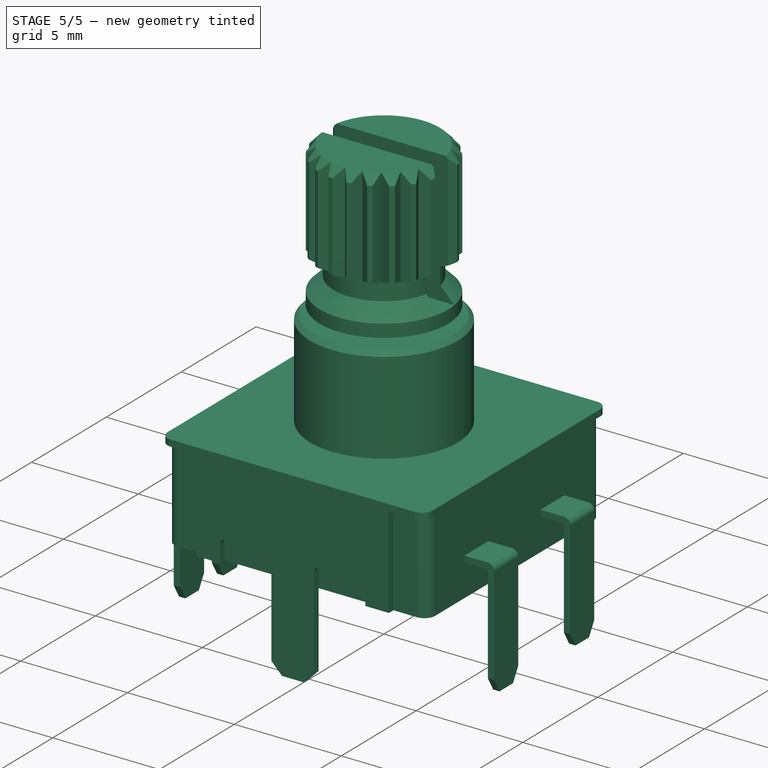
[diagram: stage 5 of 5 — iso view after this stage's code; geometry added in this stage tinted green]
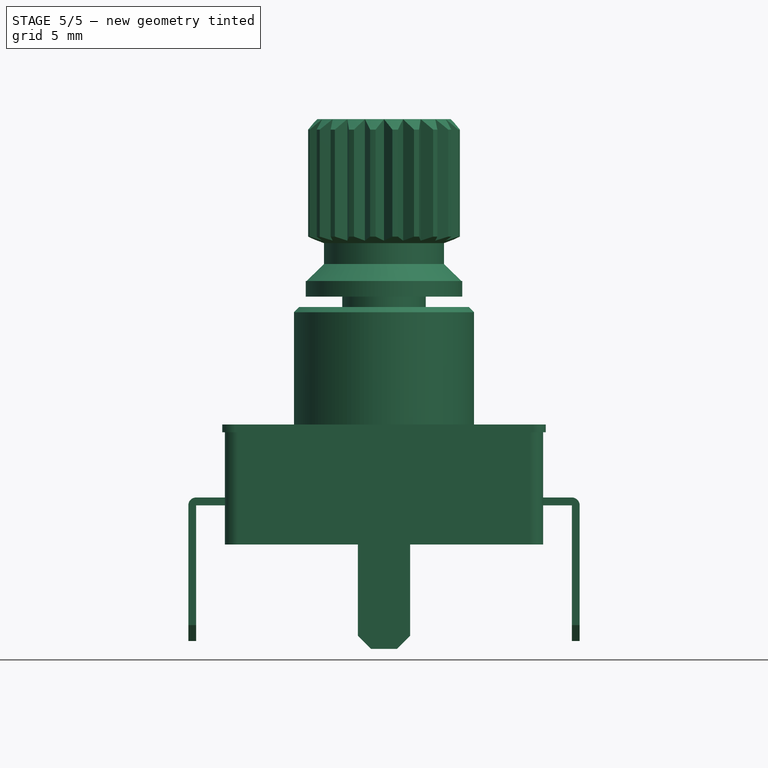
[diagram: stage 5 of 5 — front view after this stage's code; geometry added in this stage tinted green]
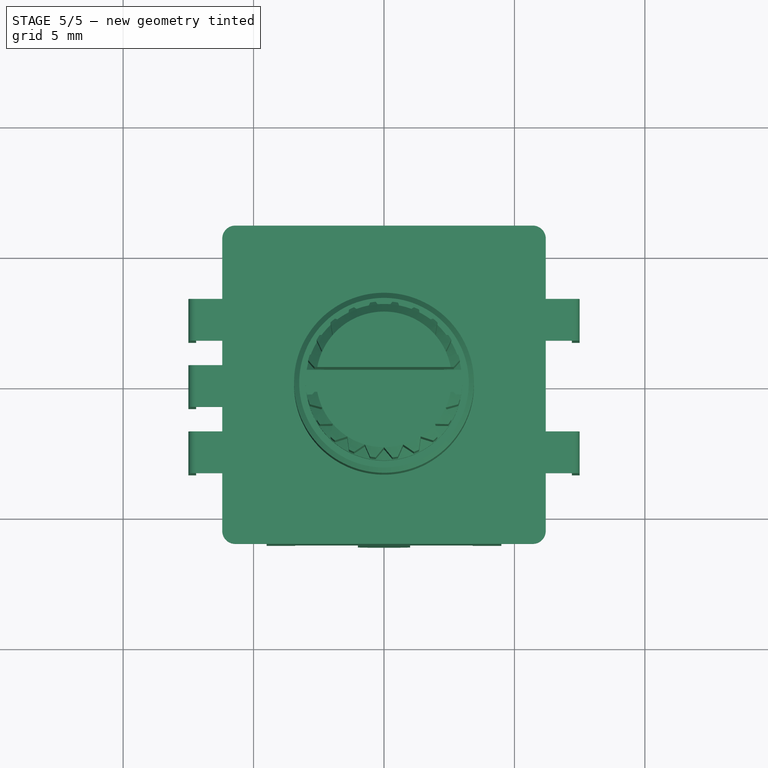
[diagram: stage 5 of 5 — top view after this stage's code; geometry added in this stage tinted green]
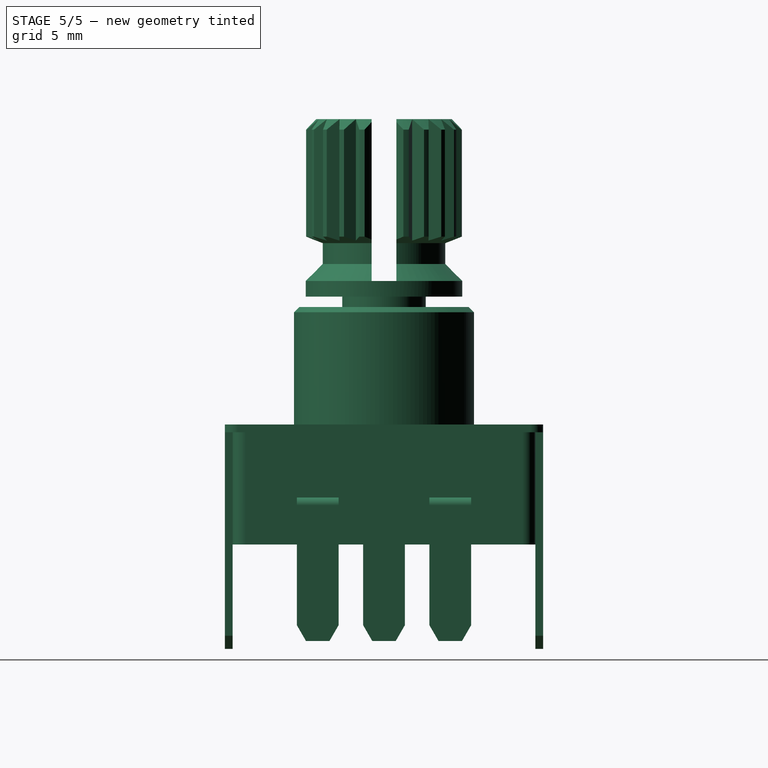
[diagram: stage 5 of 5 — right view after this stage's code; geometry added in this stage tinted green]
FEATURE [Sketcher::SketchObject] Sketch  label="main-body-sketch"
  sketch-geometry (8):
    g0: LineSegment StartX=-5.6 StartY=5.8 StartZ=0 EndX=5.6 EndY=5.8 EndZ=0
    g1: LineSegment StartX=6.1 StartY=5.3 StartZ=0 EndX=6.1 EndY=-5.3 EndZ=0
    g2: LineSegment StartX=5.6 StartY=-5.8 StartZ=0 EndX=-5.6 EndY=-5.8 EndZ=0
    g3: LineSegment StartX=-6.1 StartY=-5.3 StartZ=0 EndX=-6.1 EndY=5.3 EndZ=0
    g4: ArcOfCircle CenterX=-5.6 CenterY=5.3 CenterZ=0 NormalX=0 NormalY=0 NormalZ=1 Radius=0.5 StartAngle=1.5708 EndAngle=3.14159
    g5: ArcOfCircle CenterX=5.6 CenterY=5.3 CenterZ=0 NormalX=0 NormalY=0 NormalZ=1 Radius=0.5 StartAngle=0 EndAngle=1.5708
    g6: ArcOfCircle CenterX=5.6 CenterY=-5.3 CenterZ=0 NormalX=0 NormalY=0 NormalZ=1 Radius=0.5 StartAngle=4.71239 EndAngle=6.28319
    g7: ArcOfCircle CenterX=-5.6 CenterY=-5.3 CenterZ=0 NormalX=0 NormalY=0 NormalZ=1 Radius=0.5 StartAngle=3.14159 EndAngle=4.71239
  constraints (19):
    c: Horizontal(g0)
    c: Horizontal(g2)
    c: Vertical(g1)
    c: Vertical(g3)
    c: Tangent(g0,g4)
    c: Tangent(g3,g4)
    c: Tangent(g0,g5)
    c: Tangent(g1,g5)
    c: Tangent(g1,g6)
    c: Tangent(g2,g6)
    c: Tangent(g2,g7)
    c: Tangent(g3,g7)
    c: Radius(g4) = 0.5
    c: Equal(g4,g5)
    c: Equal(g5,g6)
    c: Equal(g6,g7)
    c: Symmetric(g4,g6,g-1)
    c: DistanceY(g0,g2) = -11.6
    c: DistanceX(g3,g1) = 12.2
FEATURE [PartDesign::Pad] Pad  label="main-body"
  Length = 4.3
  Length2 = 100
  Sketch = -> Sketch
  Type = 0
FEATURE [Part::Chamfer] Chamfer
  Base = -> Pad002
  Edges = 4 edges r=0.5: [Edge85,Edge86,Edge90,Edge92]
FEATURE [Part::Fillet] Fillet
  Base = -> Chamfer
  Edges = 8 edges r=0.2: [Edge20,Edge25,Edge34,Edge39,Edge100,Edge102,Edge106,Edge107]
FEATURE [App::DocumentObjectGroup] Group  label="main-body-src"
  Group = -> [Pad]
FEATURE [Part::MultiFuse] Fusion
  Shapes = -> [Fillet,Pocket003]
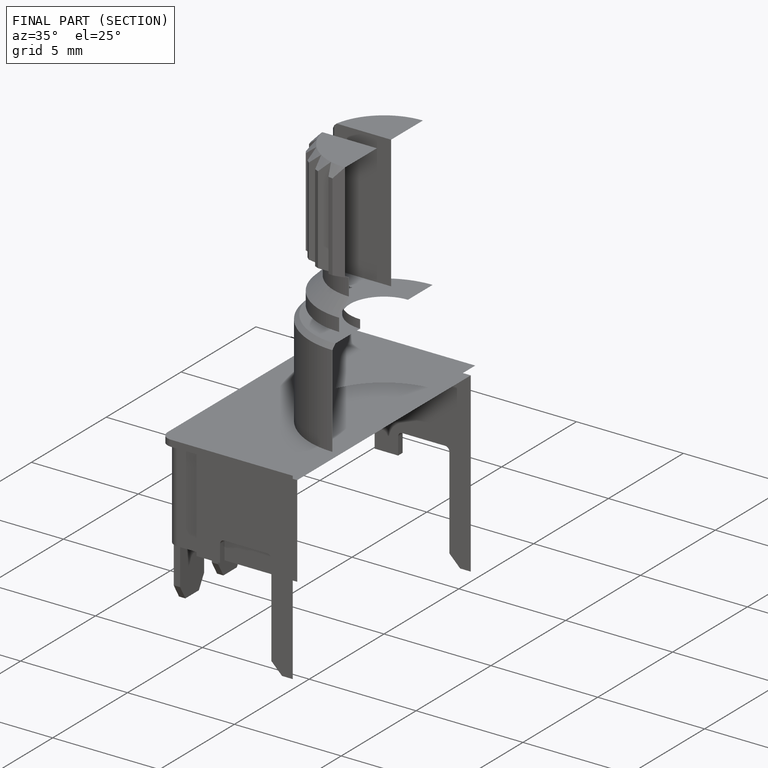
[diagram: finished part — half-section view (interior)]
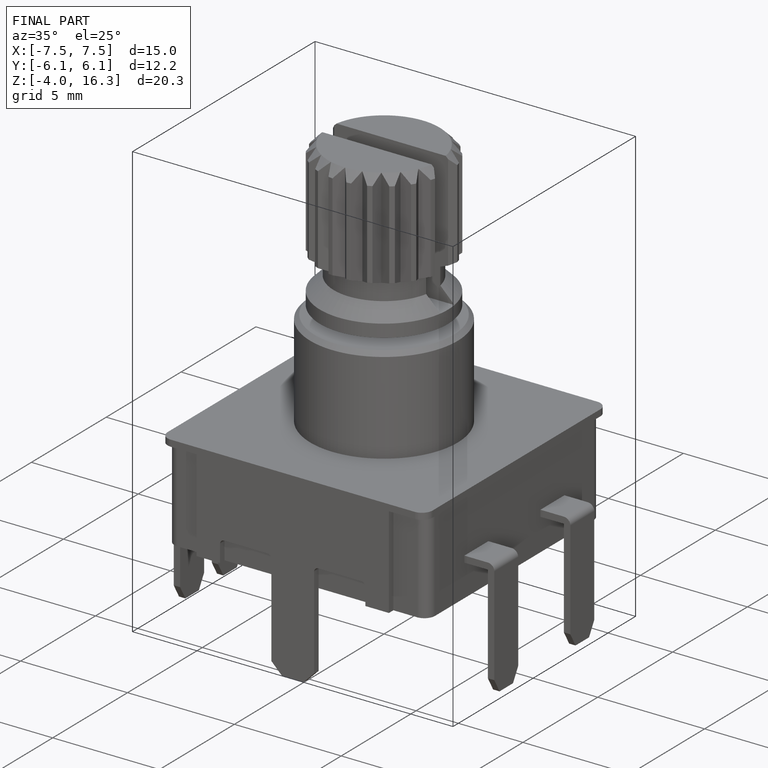
[diagram: finished part — iso view with bounding-box wireframe]
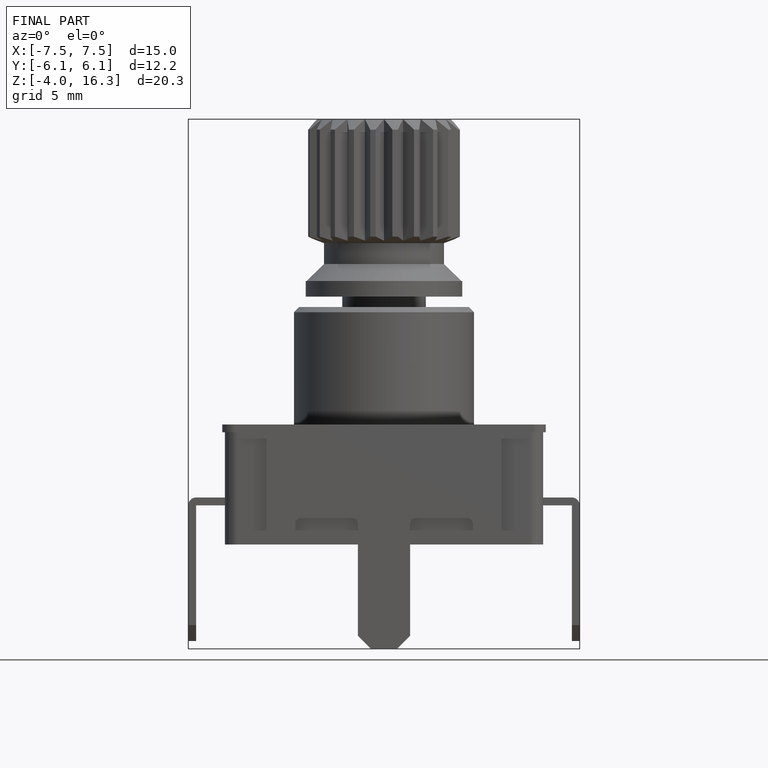
[diagram: finished part — front view with bounding-box wireframe]
